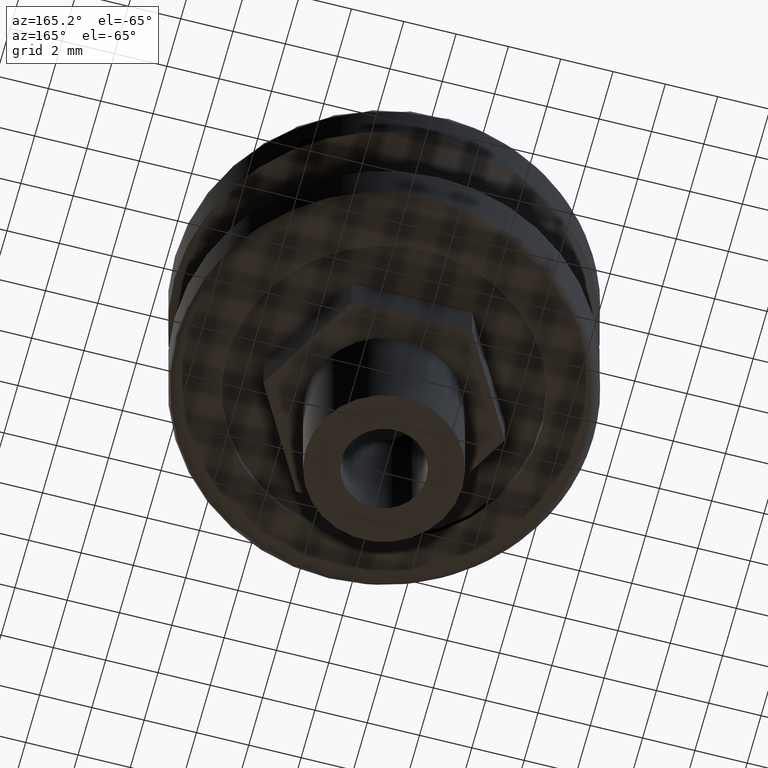
[diagram: clean part render]
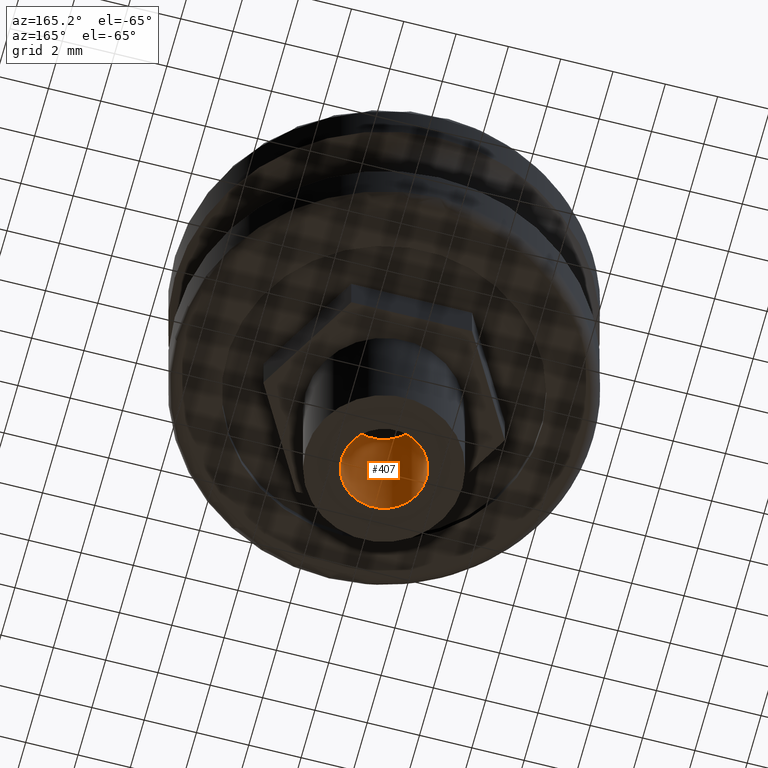
[diagram: same view with one face highlighted and labeled with its STEP entity id]
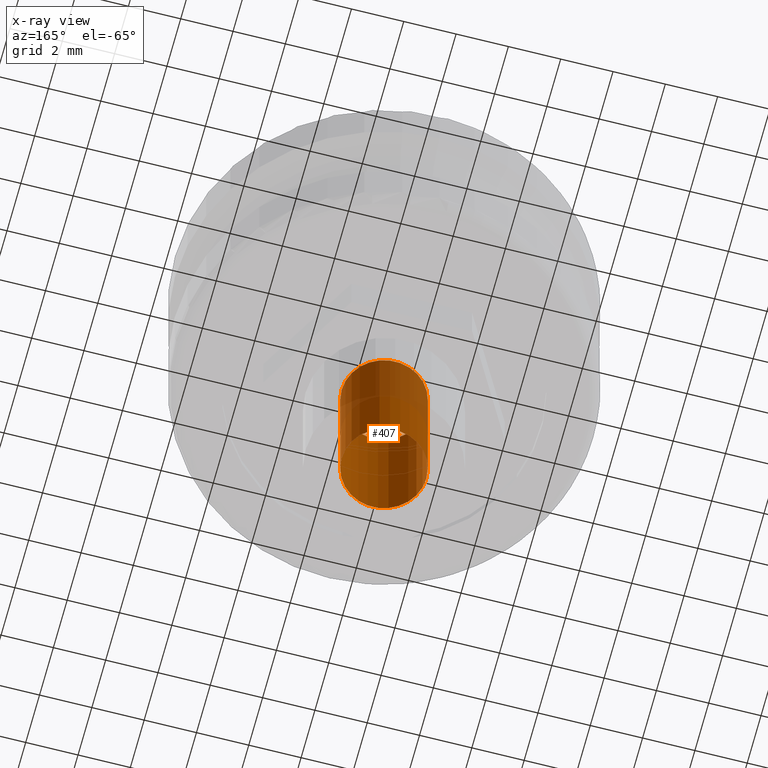
[diagram: x-ray of the same camera — body ghosted, the highlighted face saturated]
A machine part, auxiliary view. The second image highlights one B-rep face of the part: STEP entity #407.
The next image is the same camera in x-ray: the body ghosted, the highlighted face saturated — about 29% of this face is hidden behind the body in this view.
In plain terms, the highlighted cylindrical surface (bore or boss wall) has radius 1.621 mm, axis along (0, 0, -1).
Its self-contained STEP definition (entity closure, byte-faithful):
#38=CYLINDRICAL_SURFACE('',#458,1.621);
#47=FACE_OUTER_BOUND('',#74,.T.);
#74=EDGE_LOOP('',(#282,#283,#284,#285));
#108=LINE('',#654,#136);
#136=VECTOR('',#520,1.621);
#163=CIRCLE('',#457,1.621);
#164=CIRCLE('',#459,1.621);
#189=VERTEX_POINT('',#647);
#191=VERTEX_POINT('',#652);
#225=EDGE_CURVE('',#189,#189,#163,.T.);
#227=EDGE_CURVE('',#191,#191,#164,.T.);
#228=EDGE_CURVE('',#191,#189,#108,.T.);
#282=ORIENTED_EDGE('',*,*,#227,.F.);
#283=ORIENTED_EDGE('',*,*,#228,.T.);
#284=ORIENTED_EDGE('',*,*,#225,.F.);
#285=ORIENTED_EDGE('',*,*,#228,.F.);
#407=ADVANCED_FACE('',(#47),#38,.F.);
#457=AXIS2_PLACEMENT_3D('',#648,#513,#514);
#458=AXIS2_PLACEMENT_3D('',#651,#516,#517);
#459=AXIS2_PLACEMENT_3D('',#653,#518,#519);
#513=DIRECTION('center_axis',(0.,0.,-1.));
#514=DIRECTION('ref_axis',(-1.,0.,0.));
#516=DIRECTION('center_axis',(0.,0.,-1.));
#517=DIRECTION('ref_axis',(-1.,0.,0.));
#518=DIRECTION('center_axis',(0.,0.,1.));
#519=DIRECTION('ref_axis',(-1.,0.,0.));
#520=DIRECTION('',(0.,0.,1.));
#647=CARTESIAN_POINT('',(1.621,-2.14140553923581E-15,-4.6));
#648=CARTESIAN_POINT('Origin',(-6.93889390390723E-17,-1.94289029309402E-15,
-4.6));
#651=CARTESIAN_POINT('Origin',(-6.93889390390723E-17,-1.94289029309402E-15,
-7.6));
#652=CARTESIAN_POINT('',(1.621,-2.14140553923581E-15,-10.6));
#653=CARTESIAN_POINT('Origin',(-6.93889390390723E-17,-1.94289029309402E-15,
-10.6));
#654=CARTESIAN_POINT('',(1.621,-2.14140553923581E-15,-7.6));